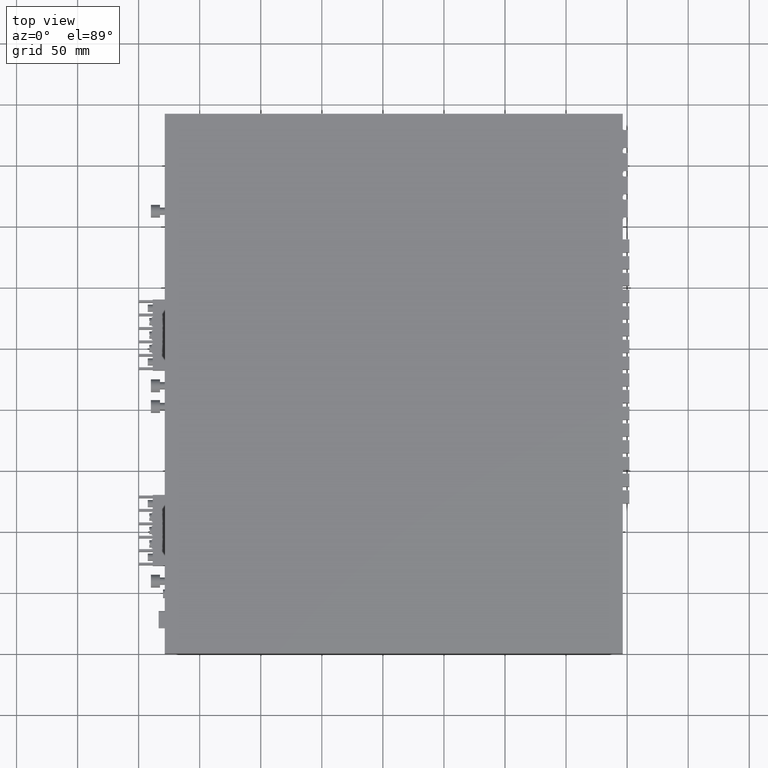
[diagram: clean part render]
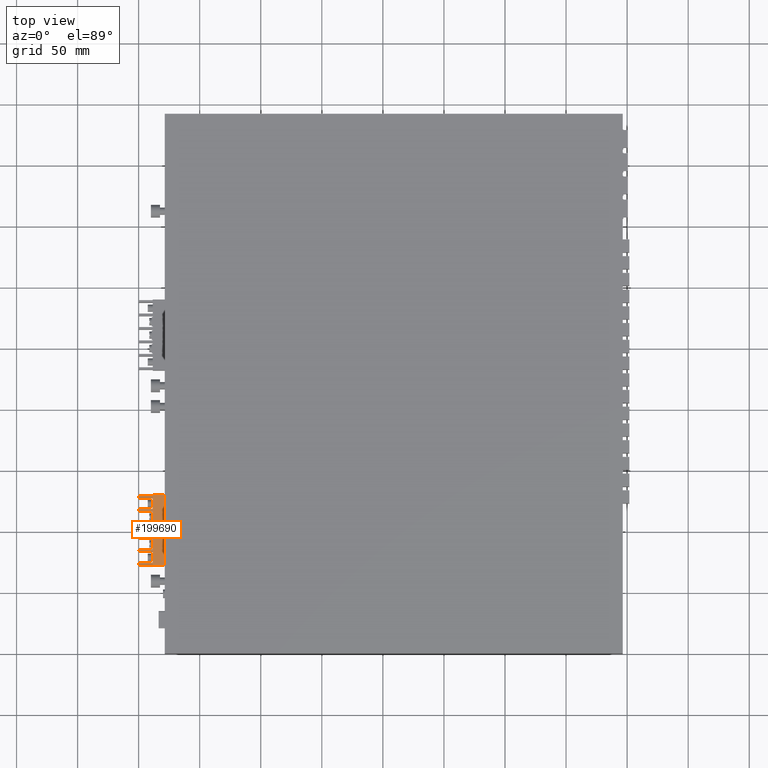
[diagram: same view with one face highlighted and labeled with its STEP entity id]
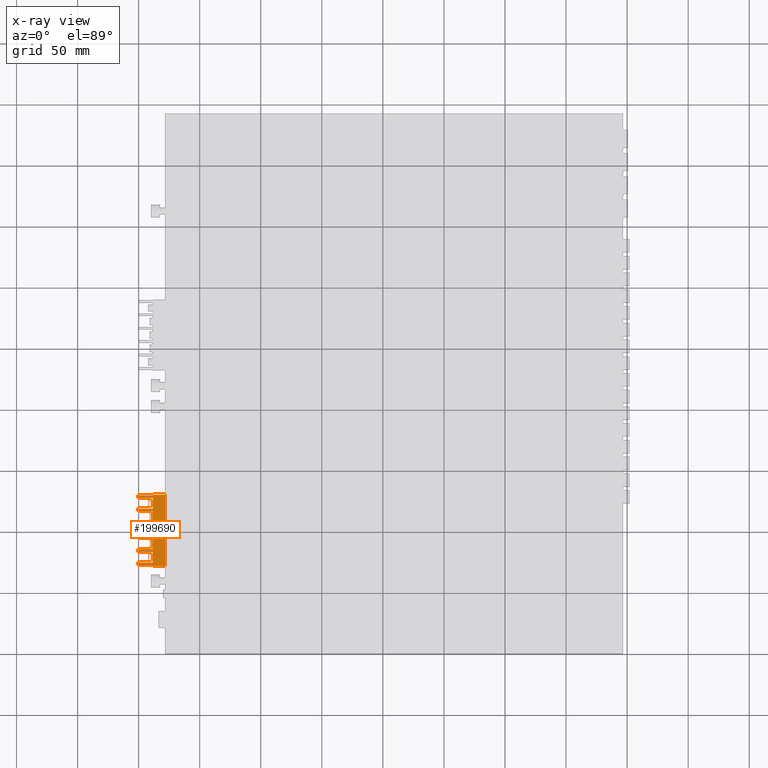
[diagram: x-ray of the same camera — body ghosted, the highlighted face saturated]
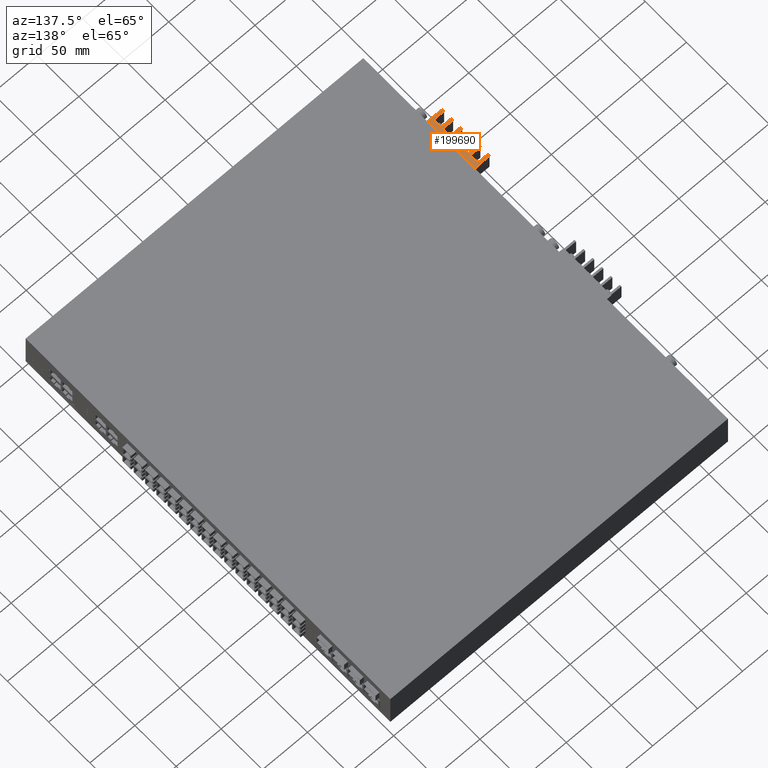
[diagram: same view with one face highlighted and labeled with its STEP entity id]
A machine part, top view. The second image highlights one B-rep face of the part: STEP entity #199690.
The next image is the same camera in x-ray: the body ghosted, the highlighted face saturated — about 0% of this face is hidden behind the body in this view.
A second angle (auxiliary view) of the same face is appended — the face is thin or edge-on in the first view.
In plain terms, the highlighted planar face has unit normal (0, 0, 1).
Its self-contained STEP definition (entity closure, byte-faithful):
#55260=CARTESIAN_POINT('',(-90.5939869574353,-10.9963677763395,
-9.90000000001973));
#55270=VERTEX_POINT('',#55260);
#55320=CARTESIAN_POINT('',(0.,-10.9963677763395,-9.90000000001973));
#55330=DIRECTION('',(-1.,0.,0.));
#55340=VECTOR('',#55330,1.);
#55350=LINE('',#55320,#55340);
#55360=CARTESIAN_POINT('',(-91.0939869574353,-10.9963677763395,
-9.90000000001973));
#55370=VERTEX_POINT('',#55360);
#55380=EDGE_CURVE('',#55270,#55370,#55350,.T.);
#95870=CARTESIAN_POINT('',(-137.093986957435,-10.9963677763395,
-9.90000000001973));
#95880=VERTEX_POINT('',#95870);
#95910=CARTESIAN_POINT('',(0.,-10.9963677763395,-9.90000000001973));
#95920=DIRECTION('',(-1.,0.,0.));
#95930=VECTOR('',#95920,1.);
#95940=LINE('',#95910,#95930);
#95950=CARTESIAN_POINT('',(-146.093986957435,-10.9963677763395,
-9.90000000001973));
#95960=VERTEX_POINT('',#95950);
#95970=EDGE_CURVE('',#95880,#95960,#95940,.T.);
#96550=CARTESIAN_POINT('',(-135.093986957435,-10.9963677763395,0.));
#96560=DIRECTION('',(0.,0.,-1.));
#96570=VECTOR('',#96560,1.);
#96580=LINE('',#96550,#96570);
#96590=CARTESIAN_POINT('',(-135.093986957435,-10.9963677763395,
-9.90000000001973));
#96600=VERTEX_POINT('',#96590);
#96610=CARTESIAN_POINT('',(-135.093986957435,-10.9963677763395,
-21.4000000000197));
#96620=VERTEX_POINT('',#96610);
#96630=EDGE_CURVE('',#96600,#96620,#96580,.T.);
#96960=CARTESIAN_POINT('',(0.,-10.9963677763395,-21.4000000000197));
#96970=DIRECTION('',(1.,0.,0.));
#96980=VECTOR('',#96970,1.);
#96990=LINE('',#96960,#96980);
#97000=CARTESIAN_POINT('',(-137.093986957435,-10.9963677763395,
-21.4000000000197));
#97010=VERTEX_POINT('',#97000);
#97020=EDGE_CURVE('',#97010,#96620,#96990,.T.);
#97970=CARTESIAN_POINT('',(-148.593986957435,-10.9963677763395,
-9.90000000001973));
#97980=VERTEX_POINT('',#97970);
#98030=CARTESIAN_POINT('',(-148.593986957435,-10.9963677763395,0.));
#98040=DIRECTION('',(0.,0.,1.));
#98050=VECTOR('',#98040,1.);
#98060=LINE('',#98030,#98050);
#98070=CARTESIAN_POINT('',(-148.593986957435,-10.9963677763395,
0.199999999980264));
#98080=VERTEX_POINT('',#98070);
#98090=EDGE_CURVE('',#97980,#98080,#98060,.T.);
#100850=CARTESIAN_POINT('',(-90.5939869574353,-10.9963677763395,0.));
#100860=DIRECTION('',(0.,0.,-1.));
#100870=VECTOR('',#100860,1.);
#100880=LINE('',#100850,#100870);
#100890=CARTESIAN_POINT('',(-90.5939869574353,-10.9963677763395,
0.199999999980264));
#100900=VERTEX_POINT('',#100890);
#100910=EDGE_CURVE('',#100900,#55270,#100880,.T.);
#101400=CARTESIAN_POINT('',(-146.093986957435,-10.9963677763395,0.));
#101410=DIRECTION('',(0.,0.,-1.));
#101420=VECTOR('',#101410,1.);
#101430=LINE('',#101400,#101420);
#101440=CARTESIAN_POINT('',(-146.093986957435,-10.9963677763395,
-21.4000000000197));
#101450=VERTEX_POINT('',#101440);
#101460=EDGE_CURVE('',#95960,#101450,#101430,.T.);
#101720=CARTESIAN_POINT('',(0.,-10.9963677763395,-21.4000000000197));
#101730=DIRECTION('',(1.,0.,0.));
#101740=VECTOR('',#101730,1.);
#101750=LINE('',#101720,#101740);
#101760=CARTESIAN_POINT('',(-148.093986957435,-10.9963677763395,
-21.4000000000197));
#101770=VERTEX_POINT('',#101760);
#101780=EDGE_CURVE('',#101770,#101450,#101750,.T.);
#102020=CARTESIAN_POINT('',(-148.093986957435,-10.9963677763395,0.));
#102030=DIRECTION('',(0.,0.,1.));
#102040=VECTOR('',#102030,1.);
#102050=LINE('',#102020,#102040);
#102060=CARTESIAN_POINT('',(-148.093986957435,-10.9963677763395,
-9.90000000001973));
#102070=VERTEX_POINT('',#102060);
#102080=EDGE_CURVE('',#101770,#102070,#102050,.T.);
#102330=CARTESIAN_POINT('',(-137.093986957435,-10.9963677763395,0.));
#102340=DIRECTION('',(0.,0.,1.));
#102350=VECTOR('',#102340,1.);
#102360=LINE('',#102330,#102350);
#102370=EDGE_CURVE('',#97010,#95880,#102360,.T.);
#102550=CARTESIAN_POINT('',(-104.093986957435,-10.9963677763395,0.));
#102560=DIRECTION('',(0.,0.,1.));
#102570=VECTOR('',#102560,1.);
#102580=LINE('',#102550,#102570);
#102590=CARTESIAN_POINT('',(-104.093986957435,-10.9963677763395,
-21.4000000000197));
#102600=VERTEX_POINT('',#102590);
#102610=CARTESIAN_POINT('',(-104.093986957435,-10.9963677763395,
-9.90000000001973));
#102620=VERTEX_POINT('',#102610);
#102630=EDGE_CURVE('',#102600,#102620,#102580,.T.);
#102950=CARTESIAN_POINT('',(-93.0939869574353,-10.9963677763395,0.));
#102960=DIRECTION('',(0.,0.,1.));
#102970=VECTOR('',#102960,1.);
#102980=LINE('',#102950,#102970);
#102990=CARTESIAN_POINT('',(-93.0939869574353,-10.9963677763395,
-21.4000000000197));
#103000=VERTEX_POINT('',#102990);
#103010=CARTESIAN_POINT('',(-93.0939869574353,-10.9963677763395,
-9.90000000001973));
#103020=VERTEX_POINT('',#103010);
#103030=EDGE_CURVE('',#103000,#103020,#102980,.T.);
#116140=CARTESIAN_POINT('',(-91.0939869574353,-10.9963677763395,
-21.4000000000197));
#116150=VERTEX_POINT('',#116140);
#116200=CARTESIAN_POINT('',(0.,-10.9963677763395,-21.4000000000197));
#116210=DIRECTION('',(1.,0.,0.));
#116220=VECTOR('',#116210,1.);
#116230=LINE('',#116200,#116220);
#116240=EDGE_CURVE('',#103000,#116150,#116230,.T.);
#159850=CARTESIAN_POINT('',(0.,-10.9963677763395,-9.90000000001973));
#159860=DIRECTION('',(-1.,0.,0.));
#159870=VECTOR('',#159860,1.);
#159880=LINE('',#159850,#159870);
#159890=EDGE_CURVE('',#102070,#97980,#159880,.T.);
#172190=CARTESIAN_POINT('',(-102.093986957435,-10.9963677763395,
-21.4000000000197));
#172200=VERTEX_POINT('',#172190);
#172250=CARTESIAN_POINT('',(0.,-10.9963677763395,-21.4000000000197));
#172260=DIRECTION('',(1.,0.,0.));
#172270=VECTOR('',#172260,1.);
#172280=LINE('',#172250,#172270);
#172290=EDGE_CURVE('',#102600,#172200,#172280,.T.);
#172460=CARTESIAN_POINT('',(-102.093986957435,-10.9963677763395,0.));
#172470=DIRECTION('',(0.,0.,-1.));
#172480=VECTOR('',#172470,1.);
#172490=LINE('',#172460,#172480);
#172500=CARTESIAN_POINT('',(-102.093986957435,-10.9963677763395,
-9.90000000001973));
#172510=VERTEX_POINT('',#172500);
#172520=EDGE_CURVE('',#172510,#172200,#172490,.T.);
#173400=CARTESIAN_POINT('',(0.,-10.9963677763395,-9.90000000001973));
#173410=DIRECTION('',(-1.,0.,0.));
#173420=VECTOR('',#173410,1.);
#173430=LINE('',#173400,#173420);
#173440=CARTESIAN_POINT('',(-113.093986957435,-10.9963677763395,
-9.90000000001973));
#173450=VERTEX_POINT('',#173440);
#173460=EDGE_CURVE('',#102620,#173450,#173430,.T.);
#177160=CARTESIAN_POINT('',(-91.0939869574353,-10.9963677763395,0.));
#177170=DIRECTION('',(0.,0.,-1.));
#177180=VECTOR('',#177170,1.);
#177190=LINE('',#177160,#177180);
#177200=EDGE_CURVE('',#55370,#116150,#177190,.T.);
#179810=CARTESIAN_POINT('',(0.,-10.9963677763395,-9.90000000001973));
#179820=DIRECTION('',(-1.,0.,0.));
#179830=VECTOR('',#179820,1.);
#179840=LINE('',#179810,#179830);
#179850=EDGE_CURVE('',#103020,#172510,#179840,.T.);
#183670=CARTESIAN_POINT('',(-115.093986957435,-10.9963677763395,0.));
#183680=DIRECTION('',(0.,0.,1.));
#183690=VECTOR('',#183680,1.);
#183700=LINE('',#183670,#183690);
#183710=CARTESIAN_POINT('',(-115.093986957435,-10.9963677763395,
-21.4000000000197));
#183720=VERTEX_POINT('',#183710);
#183730=CARTESIAN_POINT('',(-115.093986957435,-10.9963677763395,
-9.90000000001973));
#183740=VERTEX_POINT('',#183730);
#183750=EDGE_CURVE('',#183720,#183740,#183700,.T.);
#186850=CARTESIAN_POINT('',(0.,-10.9963677763395,-9.90000000001973));
#186860=DIRECTION('',(-1.,0.,0.));
#186870=VECTOR('',#186860,1.);
#186880=LINE('',#186850,#186870);
#186890=CARTESIAN_POINT('',(-124.093986957435,-10.9963677763395,
-9.90000000001973));
#186900=VERTEX_POINT('',#186890);
#186910=EDGE_CURVE('',#183740,#186900,#186880,.T.);
#190420=CARTESIAN_POINT('',(-124.093986957435,-10.9963677763395,
-21.4000000000197));
#190430=VERTEX_POINT('',#190420);
#190460=CARTESIAN_POINT('',(0.,-10.9963677763395,-21.4000000000197));
#190470=DIRECTION('',(1.,0.,0.));
#190480=VECTOR('',#190470,1.);
#190490=LINE('',#190460,#190480);
#190500=CARTESIAN_POINT('',(-126.093986957435,-10.9963677763395,
-21.4000000000197));
#190510=VERTEX_POINT('',#190500);
#190520=EDGE_CURVE('',#190510,#190430,#190490,.T.);
#190690=CARTESIAN_POINT('',(-124.093986957435,-10.9963677763395,0.));
#190700=DIRECTION('',(0.,0.,-1.));
#190710=VECTOR('',#190700,1.);
#190720=LINE('',#190690,#190710);
#190730=EDGE_CURVE('',#186900,#190430,#190720,.T.);
#190860=CARTESIAN_POINT('',(-126.093986957435,-10.9963677763395,0.));
#190870=DIRECTION('',(0.,0.,1.));
#190880=VECTOR('',#190870,1.);
#190890=LINE('',#190860,#190880);
#190900=CARTESIAN_POINT('',(-126.093986957435,-10.9963677763395,
-9.90000000001973));
#190910=VERTEX_POINT('',#190900);
#190920=EDGE_CURVE('',#190510,#190910,#190890,.T.);
#191110=CARTESIAN_POINT('',(0.,-10.9963677763395,-9.90000000001973));
#191120=DIRECTION('',(-1.,0.,0.));
#191130=VECTOR('',#191120,1.);
#191140=LINE('',#191110,#191130);
#191150=EDGE_CURVE('',#190910,#96600,#191140,.T.);
#195320=CARTESIAN_POINT('',(-113.093986957435,-10.9963677763395,0.));
#195330=DIRECTION('',(0.,0.,-1.));
#195340=VECTOR('',#195330,1.);
#195350=LINE('',#195320,#195340);
#195360=CARTESIAN_POINT('',(-113.093986957435,-10.9963677763395,
-21.4000000000197));
#195370=VERTEX_POINT('',#195360);
#195380=EDGE_CURVE('',#173450,#195370,#195350,.T.);
#197480=CARTESIAN_POINT('',(0.,-10.9963677763395,-21.4000000000197));
#197490=DIRECTION('',(1.,0.,0.));
#197500=VECTOR('',#197490,1.);
#197510=LINE('',#197480,#197500);
#197520=EDGE_CURVE('',#183720,#195370,#197510,.T.);
#199290=CARTESIAN_POINT('',(-150.044053107435,-10.9963677763395,
0.740066149980265));
#199300=DIRECTION('',(-0.,1.,0.));
#199310=DIRECTION('',(1.,0.,0.));
#199320=AXIS2_PLACEMENT_3D('',#199290,#199300,#199310);
#199330=PLANE('',#199320);
#199340=ORIENTED_EDGE('',*,*,#100910,.T.);
#199350=CARTESIAN_POINT('',(0.,-10.9963677763395,0.199999999980264));
#199360=DIRECTION('',(-1.,0.,0.));
#199370=VECTOR('',#199360,1.);
#199380=LINE('',#199350,#199370);
#199390=EDGE_CURVE('',#100900,#98080,#199380,.T.);
#199400=ORIENTED_EDGE('',*,*,#199390,.F.);
#199410=ORIENTED_EDGE('',*,*,#98090,.T.);
#199420=ORIENTED_EDGE('',*,*,#159890,.T.);
#199430=ORIENTED_EDGE('',*,*,#102080,.T.);
#199440=ORIENTED_EDGE('',*,*,#101780,.F.);
#199450=ORIENTED_EDGE('',*,*,#101460,.T.);
#199460=ORIENTED_EDGE('',*,*,#95970,.T.);
#199470=ORIENTED_EDGE('',*,*,#102370,.T.);
#199480=ORIENTED_EDGE('',*,*,#97020,.F.);
#199490=ORIENTED_EDGE('',*,*,#96630,.T.);
#199500=ORIENTED_EDGE('',*,*,#191150,.T.);
#199510=ORIENTED_EDGE('',*,*,#190920,.T.);
#199520=ORIENTED_EDGE('',*,*,#190520,.F.);
#199530=ORIENTED_EDGE('',*,*,#190730,.T.);
#199540=ORIENTED_EDGE('',*,*,#186910,.T.);
#199550=ORIENTED_EDGE('',*,*,#183750,.T.);
#199560=ORIENTED_EDGE('',*,*,#197520,.F.);
#199570=ORIENTED_EDGE('',*,*,#195380,.T.);
#199580=ORIENTED_EDGE('',*,*,#173460,.T.);
#199590=ORIENTED_EDGE('',*,*,#102630,.T.);
#199600=ORIENTED_EDGE('',*,*,#172290,.F.);
#199610=ORIENTED_EDGE('',*,*,#172520,.T.);
#199620=ORIENTED_EDGE('',*,*,#179850,.T.);
#199630=ORIENTED_EDGE('',*,*,#103030,.T.);
#199640=ORIENTED_EDGE('',*,*,#116240,.F.);
#199650=ORIENTED_EDGE('',*,*,#177200,.T.);
#199660=ORIENTED_EDGE('',*,*,#55380,.T.);
#199670=EDGE_LOOP('',(#199660,#199650,#199640,#199630,#199620,#199610,
#199600,#199590,#199580,#199570,#199560,#199550,#199540,#199530,#199520,
#199510,#199500,#199490,#199480,#199470,#199460,#199450,#199440,#199430,
#199420,#199410,#199400,#199340));
#199680=FACE_OUTER_BOUND('',#199670,.T.);
#199690=ADVANCED_FACE('',(#199680),#199330,.T.);